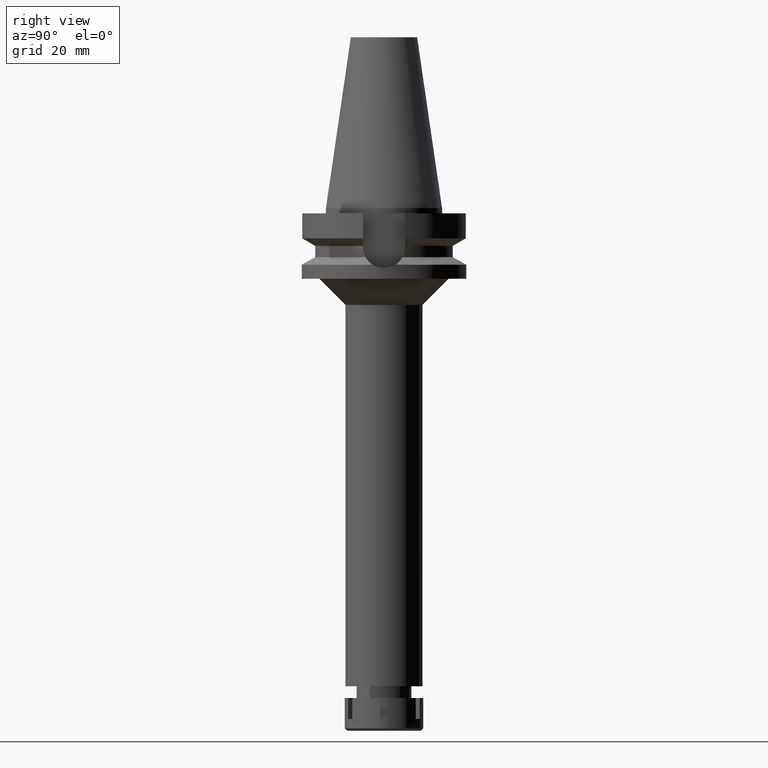
[diagram: clean part render]
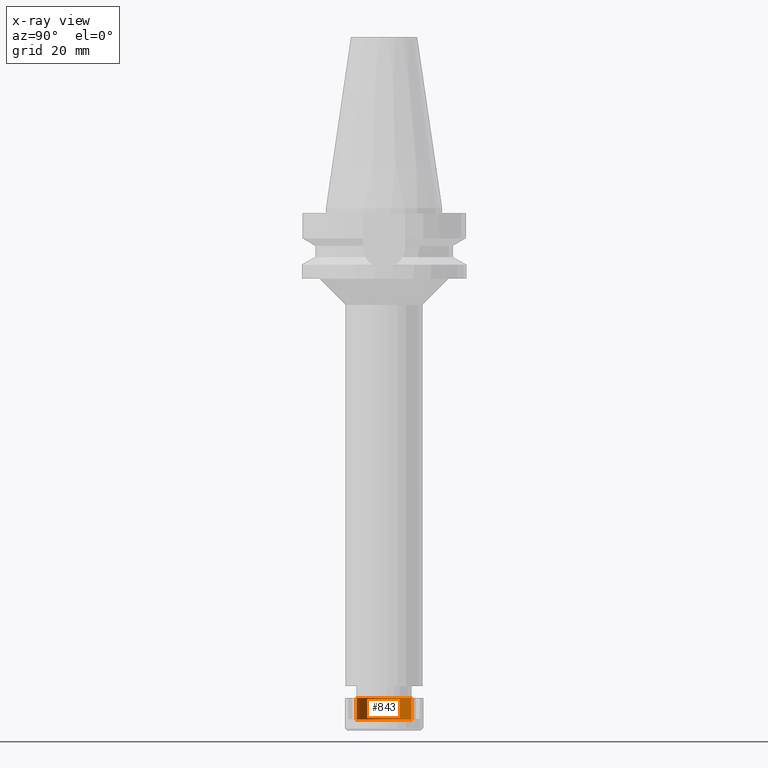
[diagram: x-ray — body ghosted, one internal face saturated and labeled with its STEP entity id]
A machine part, right view, then the same camera in x-ray: the body is ghosted and one INTERNAL B-rep face — a face not visible from any outside direction — is saturated and labeled: STEP entity #843.
In plain terms, the highlighted cylindrical surface (edge-blend (fillet) strip) has radius 10.5 mm, axis along (0, 0, -1).
Its self-contained STEP definition (entity closure, byte-faithful):
#186 = CARTESIAN_POINT ( 'NONE',  ( 0.0000000000000000000, -10.50000000000000000, -8.200000000000001066 ) ) ;
#498 = DIRECTION ( 'NONE',  ( 0.0000000000000000000, 0.0000000000000000000, 1.000000000000000000 ) ) ;
#643 = ORIENTED_EDGE ( 'NONE', *, *, #2007, .T. ) ;
#738 = CARTESIAN_POINT ( 'NONE',  ( 0.0000000000000000000, 0.0000000000000000000, 0.0000000000000000000 ) ) ;
#746 = ORIENTED_EDGE ( 'NONE', *, *, #3592, .T. ) ;
#759 = VERTEX_POINT ( 'NONE', #2442 ) ;
#794 = EDGE_CURVE ( 'NONE', #759, #2388, #850, .T. ) ;
#820 = CARTESIAN_POINT ( 'NONE',  ( 0.0000000000000000000, 0.0000000000000000000, 0.0000000000000000000 ) ) ;
#828 = CARTESIAN_POINT ( 'NONE',  ( 0.0000000000000000000, -10.50000000000000000, -8.200000000000001066 ) ) ;
#843 = ADVANCED_FACE ( 'NONE', ( #2813 ), #2258, .F. ) ;
#850 = CIRCLE ( 'NONE', #2533, 10.50000000000000000 ) ;
#1067 = ORIENTED_EDGE ( 'NONE', *, *, #794, .T. ) ;
#1144 = VERTEX_POINT ( 'NONE', #186 ) ;
#1289 = DIRECTION ( 'NONE',  ( 0.0000000000000000000, 0.0000000000000000000, -1.000000000000000000 ) ) ;
#1321 = AXIS2_PLACEMENT_3D ( 'NONE', #820, #2221, #1436 ) ;
#1436 = DIRECTION ( 'NONE',  ( 0.0000000000000000000, -1.000000000000000000, 0.0000000000000000000 ) ) ;
#1505 = EDGE_CURVE ( 'NONE', #1144, #2388, #1908, .T. ) ;
#1664 = DIRECTION ( 'NONE',  ( 0.0000000000000000000, 0.0000000000000000000, 1.000000000000000000 ) ) ;
#1794 = CARTESIAN_POINT ( 'NONE',  ( 0.0000000000000000000, -10.50000000000000000, 0.0000000000000000000 ) ) ;
#1822 = AXIS2_PLACEMENT_3D ( 'NONE', #2631, #1289, #2961 ) ;
#1908 = LINE ( 'NONE', #828, #2115 ) ;
#1938 = DIRECTION ( 'NONE',  ( 0.0000000000000000000, 1.000000000000000000, 0.0000000000000000000 ) ) ;
#1977 = CARTESIAN_POINT ( 'NONE',  ( 0.0000000000000000000, 10.50000000000000000, -8.200000000000001066 ) ) ;
#2007 = EDGE_CURVE ( 'NONE', #1144, #2373, #3046, .T. ) ;
#2115 = VECTOR ( 'NONE', #498, 1000.000000000000000 ) ;
#2165 = ORIENTED_EDGE ( 'NONE', *, *, #1505, .F. ) ;
#2221 = DIRECTION ( 'NONE',  ( 0.0000000000000000000, 0.0000000000000000000, -1.000000000000000000 ) ) ;
#2258 = CYLINDRICAL_SURFACE ( 'NONE', #1321, 10.50000000000000000 ) ;
#2373 = VERTEX_POINT ( 'NONE', #3217 ) ;
#2388 = VERTEX_POINT ( 'NONE', #1794 ) ;
#2442 = CARTESIAN_POINT ( 'NONE',  ( 0.0000000000000000000, 10.50000000000000000, 0.0000000000000000000 ) ) ;
#2494 = LINE ( 'NONE', #1977, #2807 ) ;
#2533 = AXIS2_PLACEMENT_3D ( 'NONE', #738, #1664, #1938 ) ;
#2631 = CARTESIAN_POINT ( 'NONE',  ( 0.0000000000000000000, 0.0000000000000000000, -8.200000000000001066 ) ) ;
#2807 = VECTOR ( 'NONE', #3092, 1000.000000000000000 ) ;
#2813 = FACE_OUTER_BOUND ( 'NONE', #3447, .T. ) ;
#2961 = DIRECTION ( 'NONE',  ( 0.0000000000000000000, -1.000000000000000000, 0.0000000000000000000 ) ) ;
#3046 = CIRCLE ( 'NONE', #1822, 10.50000000000000000 ) ;
#3092 = DIRECTION ( 'NONE',  ( 0.0000000000000000000, 0.0000000000000000000, 1.000000000000000000 ) ) ;
#3217 = CARTESIAN_POINT ( 'NONE',  ( 0.0000000000000000000, 10.50000000000000000, -8.200000000000001066 ) ) ;
#3447 = EDGE_LOOP ( 'NONE', ( #1067, #2165, #643, #746 ) ) ;
#3592 = EDGE_CURVE ( 'NONE', #2373, #759, #2494, .T. ) ;